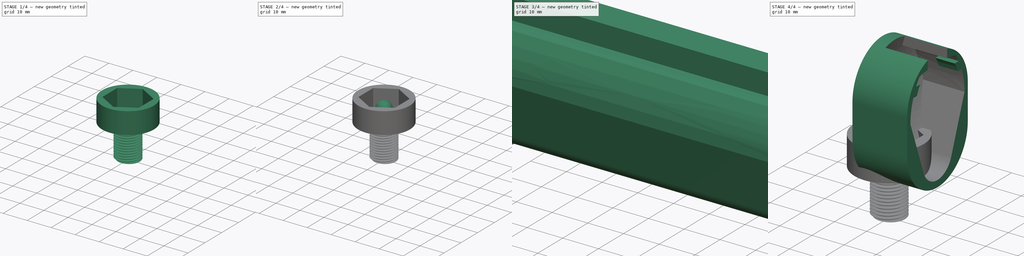
[diagram: build sequence overview — one tinted view per stage of 4, left to right]
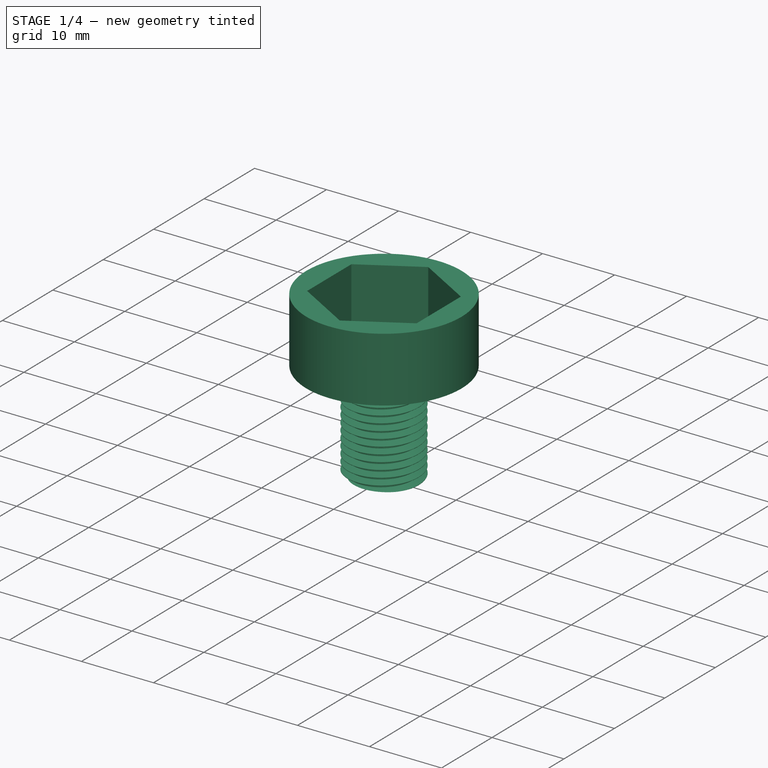
[diagram: stage 1 of 4 — iso view after this stage's code; geometry added in this stage tinted green]
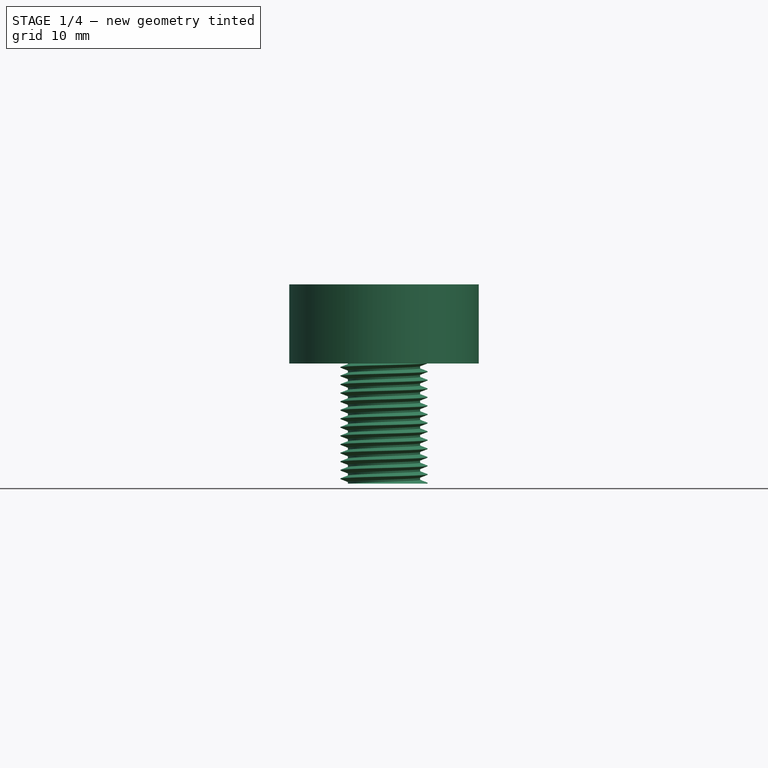
[diagram: stage 1 of 4 — front view after this stage's code; geometry added in this stage tinted green]
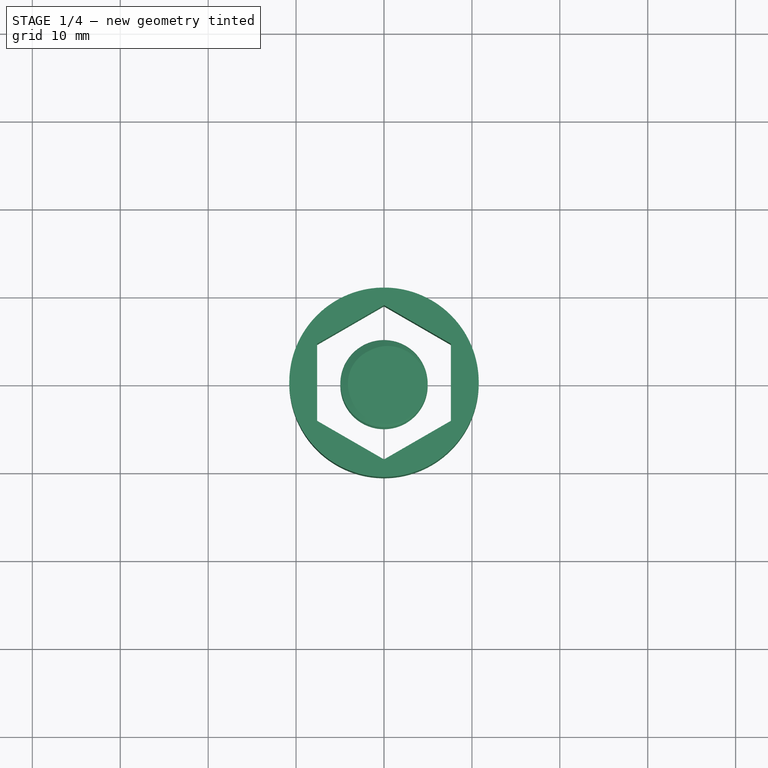
[diagram: stage 1 of 4 — top view after this stage's code; geometry added in this stage tinted green]
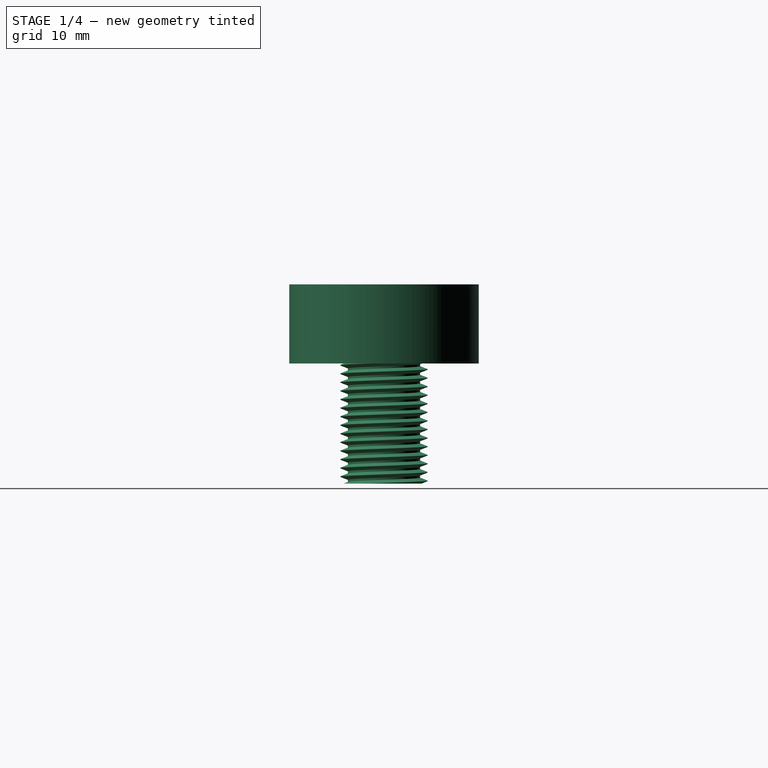
[diagram: stage 1 of 4 — right view after this stage's code; geometry added in this stage tinted green]
FCSTD DOCUMENT  (FreeCAD 0.17R13541 (Git))
Label: test120_dw_suppressor
License: All rights reserved
LicenseURL: http://en.wikipedia.org/wiki/All_rights_reserved
objects: Sketcher::SketchObject×9, PartDesign::Body×3, PartDesign::Pad×2, PartDesign::Pocket×2, Part::FeaturePython×2, Spreadsheet::Sheet×1, PartDesign::SubtractivePipe×1, Part::Extrusion×1, PartDesign::Plane×1, Part::Cut×1, Part::Sphere×1, PartDesign::FeatureBase×1
note: 29 computed .brp shape members not serialized (recipe doc carries the construction recipe); baked Part::Feature solids carry a one-line shape summary decoded from their .brp

FEATURE [Part::FeaturePython] ScrewTap  label="M10x20.0-ScrewTap"  # Fasteners workbench fastener (typed FeaturePython)
  diameter = 10
  invert = false
  length = 20
  matchOuter = false
  offset = 0
  thread = true
FEATURE [Part::FeaturePython] Clone001  label="M10x20.0-ScrewTap001"  # Draft clone (typed FeaturePython)
  AttacherType = Attacher::AttachEngine3D
  Fuse = false
  Objects = -> [ScrewTap]
  Scale = (0.98,0.98,0.65)
FEATURE [PartDesign::Body] Body001
  BaseFeature = -> Clone001
  Group = -> [BaseFeature,Sketch006,Sketch007,Pocket001]
  Origin = -> Origin001
  Tip = -> Pocket001
FEATURE [Sketcher::SketchObject] Sketch008
  MapMode = 5
  Support = -> [XY_Plane002]
  expr: Constraints[19] = 14.9 + 0.29999999999999999
  sketch-geometry (9):
    g0: LineSegment StartX=0 StartY=-8.77572 StartZ=0 EndX=7.6 EndY=-4.38786 EndZ=0
    g1: LineSegment StartX=7.6 StartY=-4.38786 StartZ=0 EndX=7.6 EndY=4.38786 EndZ=0
    g2: LineSegment StartX=7.6 StartY=4.38786 StartZ=0 EndX=0 EndY=8.77572 EndZ=0
    g3: LineSegment StartX=0 StartY=8.77572 StartZ=0 EndX=-7.6 EndY=4.38786 EndZ=0
    g4: LineSegment StartX=-7.6 StartY=4.38786 StartZ=0 EndX=-7.6 EndY=-4.38786 EndZ=0
    g5: LineSegment StartX=-7.6 StartY=-4.38786 StartZ=0 EndX=0 EndY=-8.77572 EndZ=0
    g6: Circle [constr] CenterX=0 CenterY=0 CenterZ=0 NormalX=0 NormalY=0 NormalZ=1 AngleXU=0 Radius=8.77572
    g7: Circle CenterX=0 CenterY=0 CenterZ=0 NormalX=0 NormalY=0 NormalZ=1 AngleXU=0 Radius=10.7757
    g8: GeomPoint X=0 Y=-10.7757 Z=0
  constraints (20):
    c: Coincident(g0,g1)
    c: Coincident(g1,g2)
    c: Coincident(g2,g3)
    c: Coincident(g3,g4)
    c: Coincident(g4,g5)
    c: Coincident(g5,g0)
    c: Equal(g0, g1-g5) x5
    c: PointOnObject(g0,g6)
    c: PointOnObject(g1,g6)
    c: PointOnObject(g2,g6)
    c: PointOnObject(g3,g6)
    c: PointOnObject(g4,g6)
    c: PointOnObject(g5,g6)
    c: Coincident(g6,g-1)
    c: PointOnObject(g5,g-2)
    c: Distance(g0,g2) = 15.2
    c: Coincident(g7,g-1)
    c: PointOnObject(g8,g7)
    c: PointOnObject(g8,g-2)
    c: Distance(g8,g0) = 2
FEATURE [PartDesign::Pad] Pad001
  Length = 9
  Length2 = 100
  Profile = -> Sketch008
  Type = 0
FEATURE [PartDesign::Body] Body002
  Group = -> [Sketch008,Pad001]
  Origin = -> Origin002
  Tip = -> Pad001
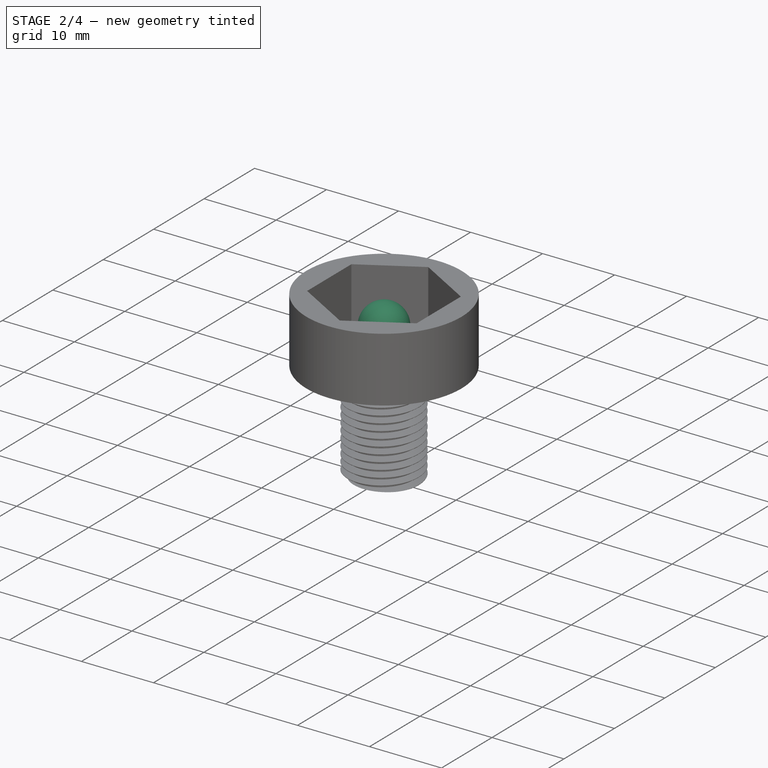
[diagram: stage 2 of 4 — iso view after this stage's code; geometry added in this stage tinted green]
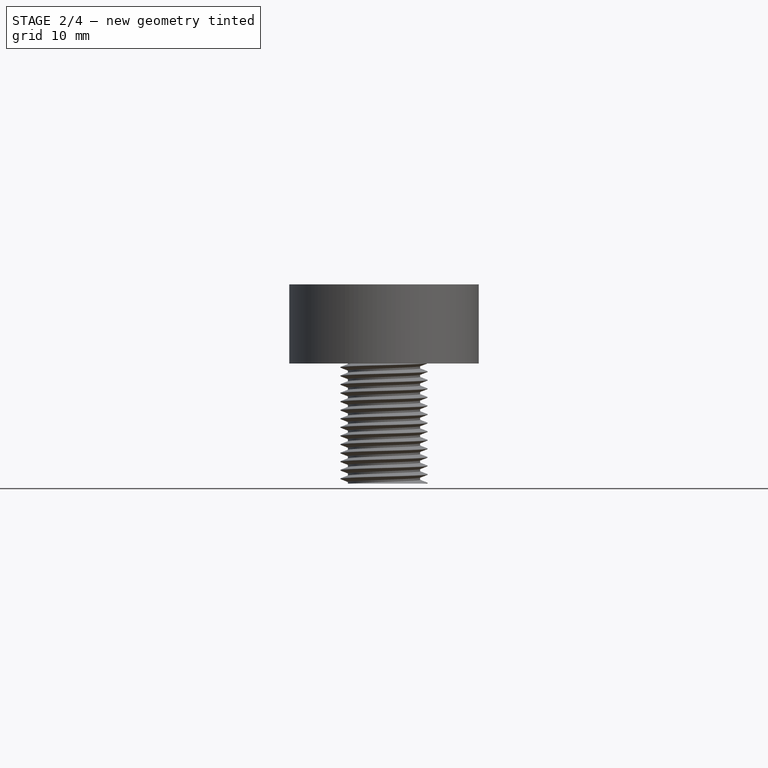
[diagram: stage 2 of 4 — front view after this stage's code; geometry added in this stage tinted green]
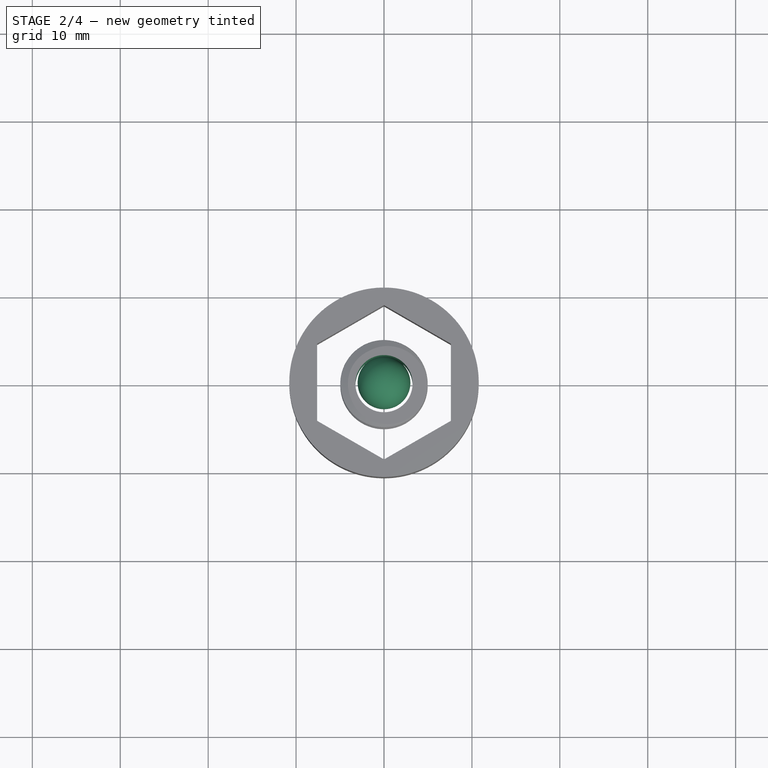
[diagram: stage 2 of 4 — top view after this stage's code; geometry added in this stage tinted green]
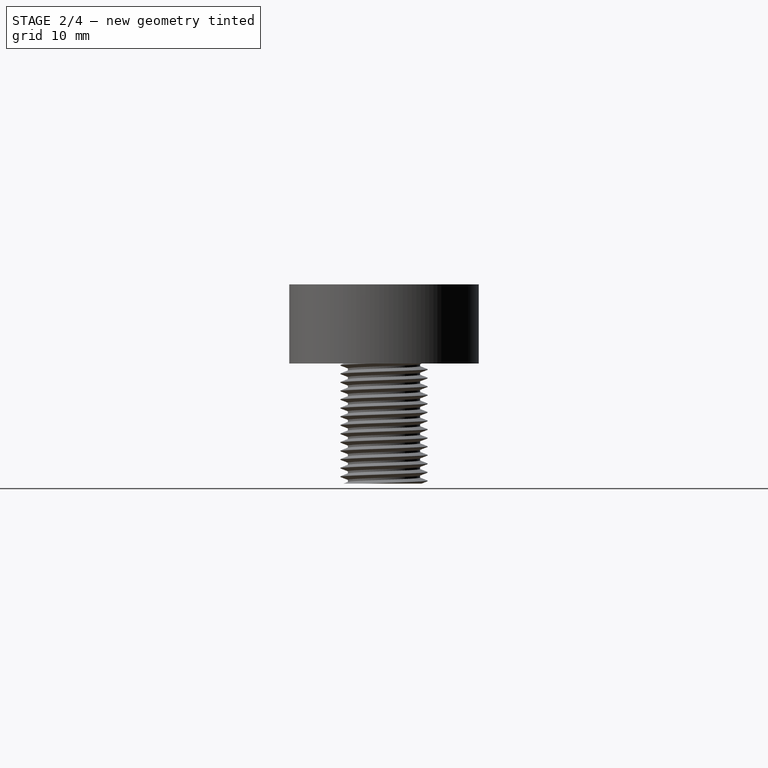
[diagram: stage 2 of 4 — right view after this stage's code; geometry added in this stage tinted green]
FEATURE [Sketcher::SketchObject] Sketch006
  MapMode = 5
  Support = -> [XY_Plane001]
  sketch-geometry (1):
    g0: Circle CenterX=0 CenterY=0 CenterZ=0 NormalX=0 NormalY=0 NormalZ=1 AngleXU=0 Radius=4.5
  constraints (2):
    c: Coincident(g0,g-1)
    c: Radius(g0) = 4.5
FEATURE [Sketcher::SketchObject] Sketch007
  MapMode = 5
  Support = -> [XY_Plane001]
  sketch-geometry (1):
    g0: Circle CenterX=0 CenterY=0 CenterZ=0 NormalX=0 NormalY=0 NormalZ=1 AngleXU=0 Radius=3.25
  constraints (2):
    c: Coincident(g0,g-1)
    c: Radius(g0) = 3.25
FEATURE [Part::Sphere] Sphere
  Angle1 = -90
  Angle2 = 90
  Angle3 = 360
  AttacherType = Attacher::AttachEngine3D
  Placement = pos=(0,0,5) rot=(0,0,1;0rad)
  Radius = 3
FEATURE [PartDesign::FeatureBase] BaseFeature
  BaseFeature = -> Clone001
FEATURE [PartDesign::Pocket] Pocket001
  BaseFeature = -> BaseFeature
  Length = 5
  Length2 = 100
  Profile = -> Sketch007
  Type = 1
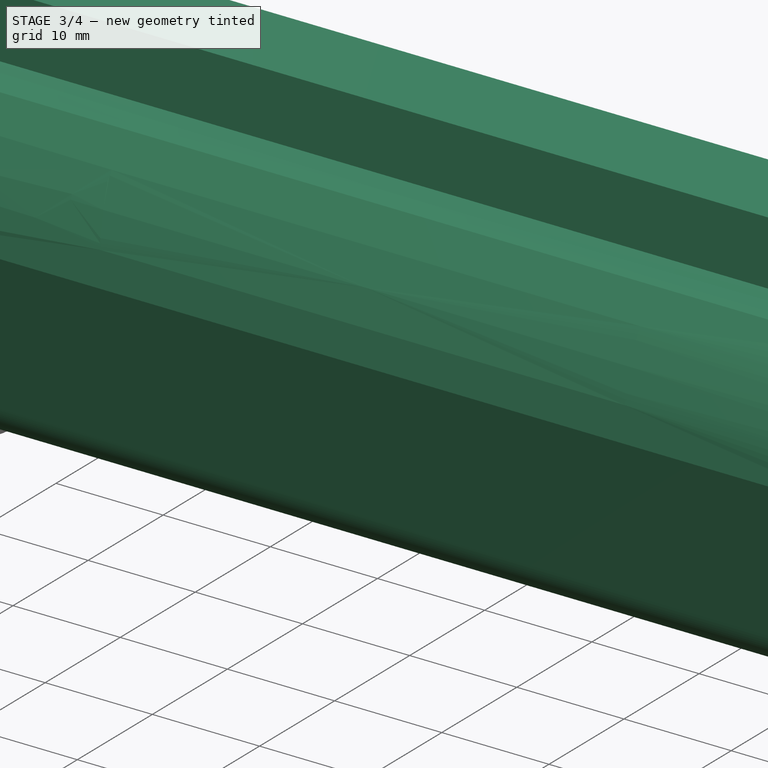
[diagram: stage 3 of 4 — iso view after this stage's code; geometry added in this stage tinted green]
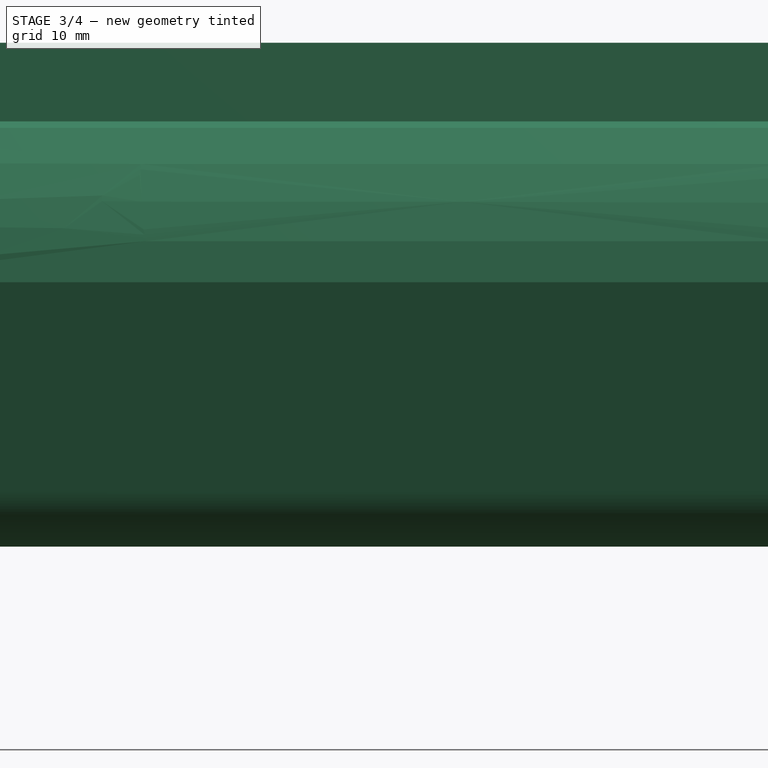
[diagram: stage 3 of 4 — front view after this stage's code; geometry added in this stage tinted green]
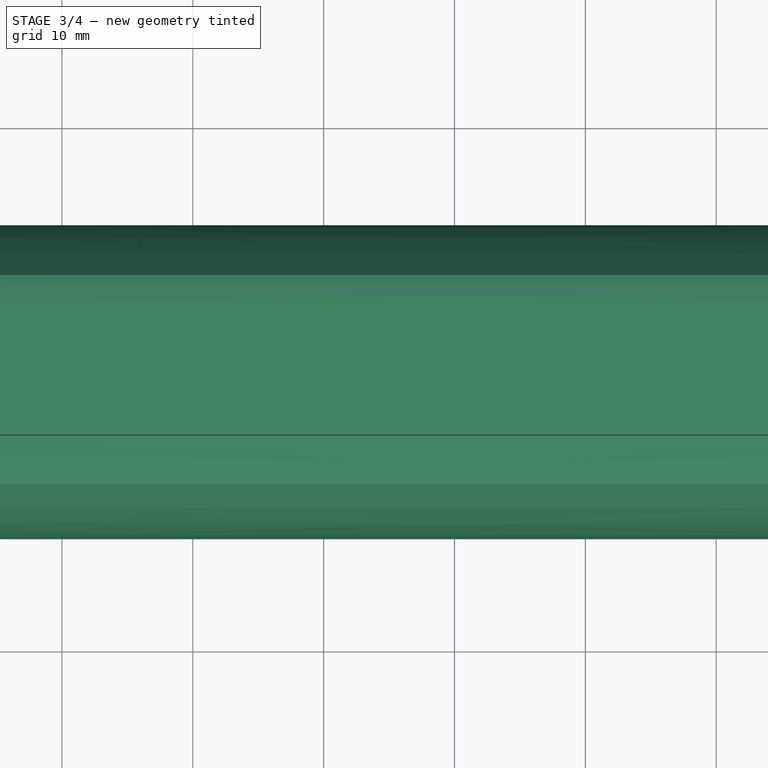
[diagram: stage 3 of 4 — top view after this stage's code; geometry added in this stage tinted green]
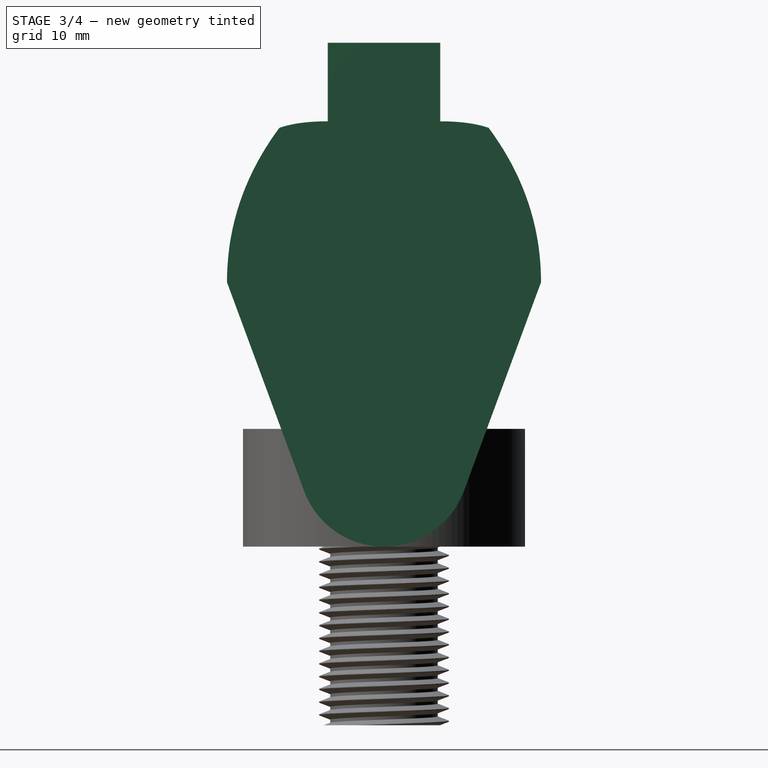
[diagram: stage 3 of 4 — right view after this stage's code; geometry added in this stage tinted green]
FEATURE [Spreadsheet::Sheet] Spreadsheet
  cells = A1=#Padding; B1(Padding)=0.5; A2=#GrillOffsetEnd; B2(GrillOffsetEnd)=9
FEATURE [Sketcher::SketchObject] Sketch  label="EndProfileBase"
  MapMode = 5
  Placement = pos=(0,0,0) rot=(1,0,0;1.5708rad)
  Support = -> [XZ_Plane]
  sketch-geometry (19):
    g0: LineSegment [constr] StartX=0 StartY=0 StartZ=0 EndX=9.5 EndY=0 EndZ=0
    g1: LineSegment [constr] StartX=9.5 StartY=0 StartZ=0 EndX=9.5 EndY=32 EndZ=0
    g2: LineSegment [constr] StartX=9.5 StartY=32 StartZ=0 EndX=0 EndY=32 EndZ=0
    g3: LineSegment [constr] StartX=0 StartY=32 StartZ=0 EndX=0 EndY=0 EndZ=0
    g4: GeomPoint X=0 Y=27 Z=0
    g5: Circle [constr] CenterX=9.5 CenterY=0 CenterZ=0 NormalX=0 NormalY=0 NormalZ=1 AngleXU=0 Radius=2
    g6: Circle [constr] CenterX=0 CenterY=12.777 CenterZ=0 NormalX=0 NormalY=0 NormalZ=1 AngleXU=0 Radius=2
    g7: Circle [constr] CenterX=0 CenterY=27 CenterZ=0 NormalX=0 NormalY=0 NormalZ=1 AngleXU=0 Radius=2
    g8: BSplineCurve PolesCount=3 KnotsCount=2 Degree=2 IsPeriodic=0
    g9: GeomPoint [constr] X=9.5 Y=0 Z=0
    g10: GeomPoint [constr] X=0 Y=27 Z=0
    g11: Circle [constr] CenterX=0 CenterY=27 CenterZ=0 NormalX=0 NormalY=0 NormalZ=1 AngleXU=0 Radius=0.6
    g12: Circle [constr] CenterX=0 CenterY=28.8607 CenterZ=0 NormalX=0 NormalY=0 NormalZ=1 AngleXU=0 Radius=0.6
    g13: Circle [constr] CenterX=0.7 CenterY=32 CenterZ=0 NormalX=0 NormalY=0 NormalZ=1 AngleXU=0 Radius=0.6
    g14: BSplineCurve PolesCount=3 KnotsCount=2 Degree=2 IsPeriodic=0
    g15: GeomPoint [constr] X=0 Y=27 Z=0
    g16: GeomPoint [constr] X=0.7 Y=32 Z=0
    g17: LineSegment StartX=9.5 StartY=0 StartZ=0 EndX=0 EndY=12.777 EndZ=0
    g18: LineSegment StartX=0 StartY=28.8607 StartZ=0 EndX=0.7 EndY=32 EndZ=0
  constraints (40):
    c: Coincident(g0,g1)
    c: Coincident(g1,g2)
    c: Coincident(g2,g3)
    c: Coincident(g3,g0)
    c: Horizontal(g0)
    c: Horizontal(g2)
    c: Vertical(g1)
    c: Vertical(g3)
    c: Coincident(g0,g-1)
    c: Distance(g3) = 32
    c: Distance(g0) = 9.5
    c: PointOnObject(g4,g3)
    c: Distance(g4,g2) = 5
    c: Coincident(g5,g0)
    c: Radius(g5) = 2
    c: Equal(g5,g6)
    c: Equal(g5,g7)
    c: Coincident(g7,g4)
    c: InternalAlignment(g5,g8)
    c: InternalAlignment(g6,g8)
    c: InternalAlignment(g7,g8)
    c: InternalAlignment(g9,g8)
    c: InternalAlignment(g10,g8)
    c: PointOnObject(g6,g3)
    c: Coincident(g11,g4)
    c: Radius(g11) = 0.6
    c: Equal(g11,g12)
    c: PointOnObject(g12,g3)
    c: Equal(g11,g13)
    c: PointOnObject(g13,g2)
    c: InternalAlignment(g11,g14)
    c: InternalAlignment(g12,g14)
    c: InternalAlignment(g13,g14)
    c: InternalAlignment(g15,g14)
    c: InternalAlignment(g16,g14)
    c: Distance(g13,g2) = 0.7
    c: Coincident(g0,g17)
    c: Coincident(g17,g6)
    c: Coincident(g18,g12)
    c: Coincident(g18,g13)
FEATURE [Sketcher::SketchObject] Sketch001  label="EndProfile"
  ExternalGeometry = -> [Sketch]
  MapMode = 5
  Placement = pos=(0,0,0) rot=(1,0,0;1.5708rad)
  Support = -> [XZ_Plane]
  sketch-geometry (17):
    g0: LineSegment StartX=-2.65756 StartY=-4.7693 StartZ=0 EndX=-2.65756 EndY=41.459 EndZ=0
    g1: Circle [constr] CenterX=9.5003 CenterY=-0.000547 CenterZ=0 NormalX=0 NormalY=0 NormalZ=1 AngleXU=0 Radius=2
    g2: Circle [constr] CenterX=0 CenterY=12.777 CenterZ=0 NormalX=0 NormalY=0 NormalZ=1 AngleXU=0 Radius=2
    g3: Circle [constr] CenterX=0 CenterY=27 CenterZ=0 NormalX=0 NormalY=0 NormalZ=1 AngleXU=0 Radius=2
    g4: BSplineCurve PolesCount=3 KnotsCount=2 Degree=2 IsPeriodic=0
    g5: GeomPoint [constr] X=9.5003 Y=-0.000547 Z=0
    g6: GeomPoint [constr] X=0 Y=27 Z=0
    g7: Circle [constr] CenterX=0 CenterY=27 CenterZ=0 NormalX=0 NormalY=0 NormalZ=1 AngleXU=0 Radius=0.6
    g8: Circle [constr] CenterX=0 CenterY=28.8607 CenterZ=0 NormalX=0 NormalY=0 NormalZ=1 AngleXU=0 Radius=0.6
    g9: Circle [constr] CenterX=0.7 CenterY=32 CenterZ=0 NormalX=0 NormalY=0 NormalZ=1 AngleXU=0 Radius=0.6
    g10: BSplineCurve PolesCount=3 KnotsCount=2 Degree=2 IsPeriodic=0
    g11: GeomPoint [constr] X=0 Y=27 Z=0
    g12: GeomPoint [constr] X=0.7 Y=32 Z=0
    g13: LineSegment StartX=0.7 StartY=32 StartZ=0 EndX=3.46291 EndY=41.459 EndZ=0
    g14: LineSegment StartX=3.46291 StartY=41.459 StartZ=0 EndX=-2.65756 EndY=41.459 EndZ=0
    g15: LineSegment StartX=9.5003 StartY=-0.000547 StartZ=0 EndX=13.8109 EndY=-4.7693 EndZ=0
    g16: LineSegment StartX=13.8109 StartY=-4.7693 StartZ=0 EndX=-2.65756 EndY=-4.7693 EndZ=0
  constraints (29):
    c: Vertical(g0)
    c: Radius(g1) = 2
    c: Equal(g1,g2)
    c: Coincident(g2,g-4)
    c: Equal(g1,g3)
    c: Coincident(g3,g-3)
    c: InternalAlignment(g1,g4)
    c: InternalAlignment(g2,g4)
    c: InternalAlignment(g3,g4)
    c: InternalAlignment(g5,g4)
    c: InternalAlignment(g6,g4)
    c: Coincident(g7,g3)
    c: Radius(g7) = 0.6
    c: Equal(g7,g8)
    c: Coincident(g8,g-5)
    c: Equal(g7,g9)
    c: InternalAlignment(g7,g10)
    c: InternalAlignment(g8,g10)
    c: InternalAlignment(g9,g10)
    c: InternalAlignment(g11,g10)
    c: InternalAlignment(g12,g10)
    c: Coincident(g13,g9)
    c: Coincident(g13,g14)
    c: Horizontal(g14)
    c: Coincident(g0,g14)
    c: Coincident(g15,g1)
    c: Coincident(g16,g15)
    c: Horizontal(g16)
    c: Coincident(g0,g16)
FEATURE [Sketcher::SketchObject] Sketch002
  ExternalGeometry = -> [Sketch]
  MapMode = 5
  Placement = pos=(0,0,0) rot=(0.57735,0.57735,0.57735;2.0944rad)
  Support = -> [YZ_Plane]
  expr: Constraints[33] = 3.7999999999999998 + Spreadsheet.Padding
  expr: Constraints[73] = Spreadsheet.Padding
  expr: Constraints[6] = 11.5 + Spreadsheet.Padding
  sketch-geometry (37):
    g0: LineSegment [constr] StartX=0 StartY=32.5 StartZ=0 EndX=12 EndY=32.5 EndZ=0
    g1: LineSegment [constr] StartX=12 StartY=32.5 StartZ=0 EndX=12 EndY=0 EndZ=0
    g2: LineSegment [constr] StartX=0 StartY=0 StartZ=0 EndX=0 EndY=32.5 EndZ=0
    g3: LineSegment StartX=12 StartY=20.2 StartZ=0 EndX=6.10723 EndY=4.25399 EndZ=0
    g4: GeomPoint X=8 Y=32 Z=0
    g5: Circle [constr] CenterX=12 CenterY=20.2 CenterZ=0 NormalX=0 NormalY=0 NormalZ=1 AngleXU=0 Radius=0.7
    g6: Circle [constr] CenterX=12 CenterY=26.604 CenterZ=0 NormalX=0 NormalY=0 NormalZ=1 AngleXU=0 Radius=0.7
    g7: Circle [constr] CenterX=8 CenterY=32 CenterZ=0 NormalX=0 NormalY=0 NormalZ=1 AngleXU=0 Radius=0.7
    g8: BSplineCurve PolesCount=3 KnotsCount=2 Degree=2 IsPeriodic=0
    g9: GeomPoint [constr] X=12 Y=20.2 Z=0
    g10: GeomPoint [constr] X=8 Y=32 Z=0
    g11: Circle [constr] CenterX=8 CenterY=32 CenterZ=0 NormalX=0 NormalY=0 NormalZ=1 AngleXU=0 Radius=0.4
    g12: Circle [constr] CenterX=6.57072 CenterY=32.5 CenterZ=0 NormalX=0 NormalY=0 NormalZ=1 AngleXU=0 Radius=0.4
    g13: Circle [constr] CenterX=4.3 CenterY=32.5 CenterZ=0 NormalX=0 NormalY=0 NormalZ=1 AngleXU=0 Radius=0.4
    g14: BSplineCurve PolesCount=3 KnotsCount=2 Degree=2 IsPeriodic=0
    g15: GeomPoint [constr] X=8 Y=32 Z=0
    g16: GeomPoint [constr] X=4.3 Y=32.5 Z=0
    g17: LineSegment StartX=4.3 StartY=32.5 StartZ=0 EndX=4.3 EndY=38.5 EndZ=0
    g18: LineSegment StartX=4.3 StartY=38.5 StartZ=0 EndX=0 EndY=38.5 EndZ=0
    g19: LineSegment [constr] StartX=0 StartY=0 StartZ=0 EndX=12 EndY=0 EndZ=0
    g20: LineSegment StartX=-6.10723 StartY=4.25399 StartZ=0 EndX=-12 EndY=20.2 EndZ=0
    g21: Circle [constr] CenterX=-12 CenterY=20.2 CenterZ=0 NormalX=0 NormalY=0 NormalZ=1 AngleXU=0 Radius=1
    g22: Circle [constr] CenterX=-12 CenterY=26.604 CenterZ=0 NormalX=0 NormalY=0 NormalZ=1 AngleXU=0 Radius=1
    g23: Circle [constr] CenterX=-8 CenterY=32 CenterZ=0 NormalX=0 NormalY=0 NormalZ=1 AngleXU=0 Radius=1
    g24: BSplineCurve PolesCount=3 KnotsCount=2 Degree=2 IsPeriodic=0
    g25: GeomPoint [constr] X=-12 Y=20.2 Z=0
    g26: GeomPoint [constr] X=-8 Y=32 Z=0
    g27: Circle [constr] CenterX=-8 CenterY=32 CenterZ=0 NormalX=0 NormalY=0 NormalZ=1 AngleXU=0 Radius=0.4
    g28: Circle [constr] CenterX=-6.57072 CenterY=32.5 CenterZ=0 NormalX=0 NormalY=0 NormalZ=1 AngleXU=0 Radius=0.4
    g29: Circle [constr] CenterX=-4.3 CenterY=32.5 CenterZ=0 NormalX=0 NormalY=0 NormalZ=1 AngleXU=0 Radius=0.4
    g30: BSplineCurve PolesCount=3 KnotsCount=2 Degree=2 IsPeriodic=0
    g31: GeomPoint [constr] X=-8 Y=32 Z=0
    g32: GeomPoint [constr] X=-4.3 Y=32.5 Z=0
    g33: LineSegment StartX=-4.3 StartY=32.5 StartZ=0 EndX=-4.3 EndY=38.5 EndZ=0
    g34: LineSegment StartX=-4.3 StartY=38.5 StartZ=0 EndX=0 EndY=38.5 EndZ=0
    g35: ArcOfCircle CenterX=0 CenterY=6.51091 CenterZ=0 NormalX=0 NormalY=0 NormalZ=1 AngleXU=0 Radius=6.51091 StartAngle=3.49558 EndAngle=5.9292
    g36: GeomPoint X=0 Y=0 Z=0
  constraints (82):
    c: Coincident(g0,g1)
    c: Coincident(g2,g0)
    c: Horizontal(g0)
    c: Vertical(g1)
    c: Vertical(g2)
    c: PointOnObject(g1,g-1)
    c: Distance(g0) = 12
    c: PointOnObject(g3,g1)
    c: Distance(g3,g0) = 12.3
    c: Coincident(g5,g3)
    c: Radius(g5) = 0.7
    c: Equal(g5,g6)
    c: PointOnObject(g6,g1)
    c: Equal(g5,g7)
    c: Coincident(g7,g4)
    c: InternalAlignment(g5,g8)
    c: InternalAlignment(g6,g8)
    c: InternalAlignment(g7,g8)
    c: InternalAlignment(g9,g8)
    c: InternalAlignment(g10,g8)
    c: DistanceX(g0,g4) = 8
    c: Distance(g4,g0) = 0.5
    c: Coincident(g11,g4)
    c: Radius(g11) = 0.4
    c: Equal(g11,g12)
    c: PointOnObject(g12,g0)
    c: Equal(g11,g13)
    c: PointOnObject(g13,g0)
    c: InternalAlignment(g11,g14)
    c: InternalAlignment(g12,g14)
    c: InternalAlignment(g13,g14)
    c: InternalAlignment(g15,g14)
    c: InternalAlignment(g16,g14)
    c: Distance(g13,g0) = 4.3
    c: Coincident(g17,g13)
    c: Vertical(g17)
    c: Coincident(g17,g18)
    c: PointOnObject(g18,g-2)
    c: Horizontal(g18)
    c: Distance(g17) = 6
    c: Distance(g3) = 17
    c: Coincident(g19,g2)
    c: Coincident(g19,g1)
    c: Horizontal(g19)
    c: Coincident(g21,g20)
    c: Radius(g21) = 1
    c: Equal(g21,g22)
    c: Equal(g21,g23)
    c: InternalAlignment(g21,g24)
    c: InternalAlignment(g22,g24)
    c: InternalAlignment(g23,g24)
    c: InternalAlignment(g25,g24)
    c: InternalAlignment(g26,g24)
    c: Coincident(g27,g23)
    c: Radius(g27) = 0.4
    c: Equal(g27,g28)
    c: Equal(g27,g29)
    c: InternalAlignment(g27,g30)
    c: InternalAlignment(g28,g30)
    c: InternalAlignment(g29,g30)
    c: InternalAlignment(g31,g30)
    c: InternalAlignment(g32,g30)
    c: Coincident(g33,g29)
    c: Vertical(g33)
    c: Coincident(g33,g34)
    c: Coincident(g34,g18)
    c: Horizontal(g34)
    c: Symmetric(g3,g20,g2)
    c: Symmetric(g6,g22,g2)
    c: Symmetric(g4,g23,g2)
    c: Symmetric(g12,g28,g2)
    c: Symmetric(g13,g29,g2)
    c: PointOnObject(g0,g-2)
    c: Distance(g-3,g0) = 0.5
    c: PointOnObject(g35,g2)
    c: Coincident(g35,g3)
    c: Coincident(g35,g20)
    c: PointOnObject(g36,g35)
    c: PointOnObject(g36,g-2)
    c: Equal(g3,g20)
    c: Tangent(g35,g3)
    c: DistanceY(g36,g-1) = 0
FEATURE [PartDesign::Pad] Pad
  Length = 100
  Length2 = 100
  Placement = pos=(0,0,0) rot=(0.57735,0.57735,0.57735;2.0944rad)
  Profile = -> Sketch002
  Type = 0
FEATURE [Sketcher::SketchObject] Sketch003  label="SweepPath"
  MapMode = 5
  Support = -> [XY_Plane]
  sketch-geometry (1):
    g0: ArcOfCircle CenterX=45.6904 CenterY=0 CenterZ=0 NormalX=0 NormalY=0 NormalZ=1 AngleXU=0 Radius=45.6904 StartAngle=2.84462 EndAngle=3.43856
  constraints (4):
    c: PointOnObject(g-1,g0)
    c: Symmetric(g0,g0,g-1)
    c: DistanceX(g0) = 2
    c: DistanceY(g0) = -13.3702
FEATURE [PartDesign::SubtractivePipe] SubtractivePipe  label="Pipe"
  AuxilleryCurvelinear = true
  AuxillerySpineTangent = false
  BaseFeature = -> Pad
  Binormal = (0,0,0)
  Mode = 0
  Placement = pos=(0,0,0) rot=(0.57735,0.57735,0.57735;2.0944rad)
  Profile = -> Sketch001
  Spine = -> Sketch003 [Edge1]
  SpineTangent = false
  Transformation = 0
  Transition = 0
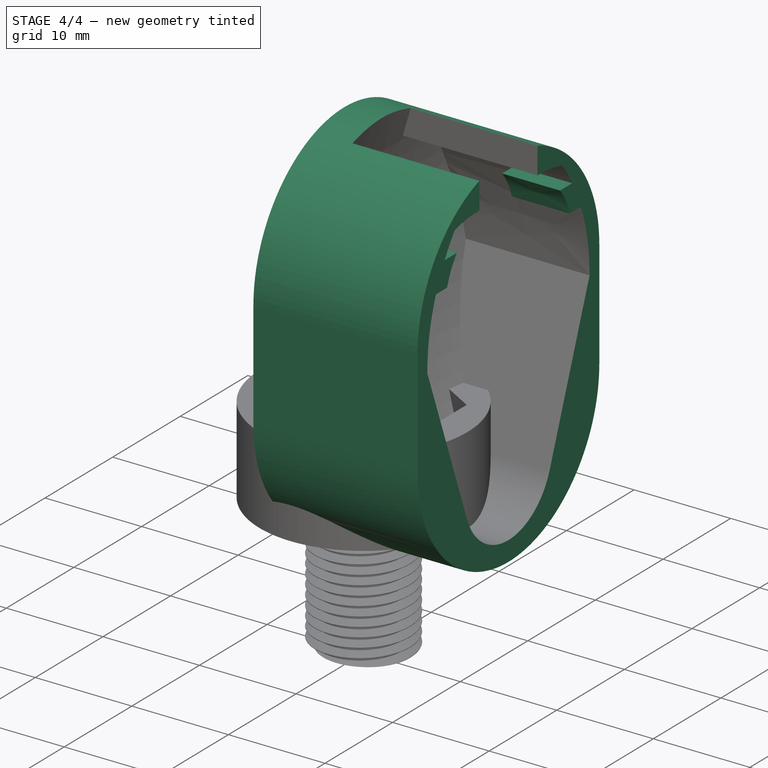
[diagram: stage 4 of 4 — iso view after this stage's code; geometry added in this stage tinted green]
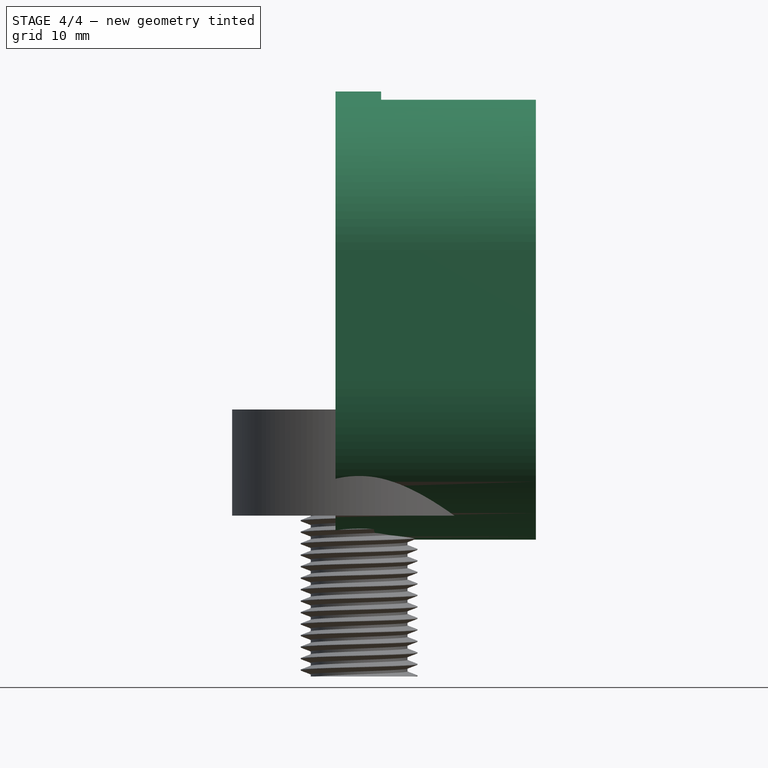
[diagram: stage 4 of 4 — front view after this stage's code; geometry added in this stage tinted green]
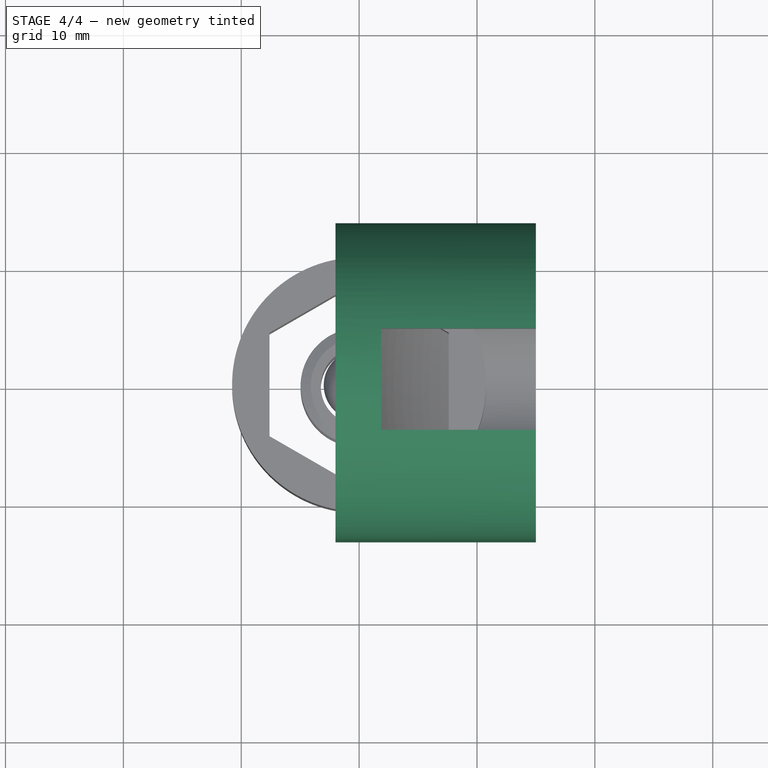
[diagram: stage 4 of 4 — top view after this stage's code; geometry added in this stage tinted green]
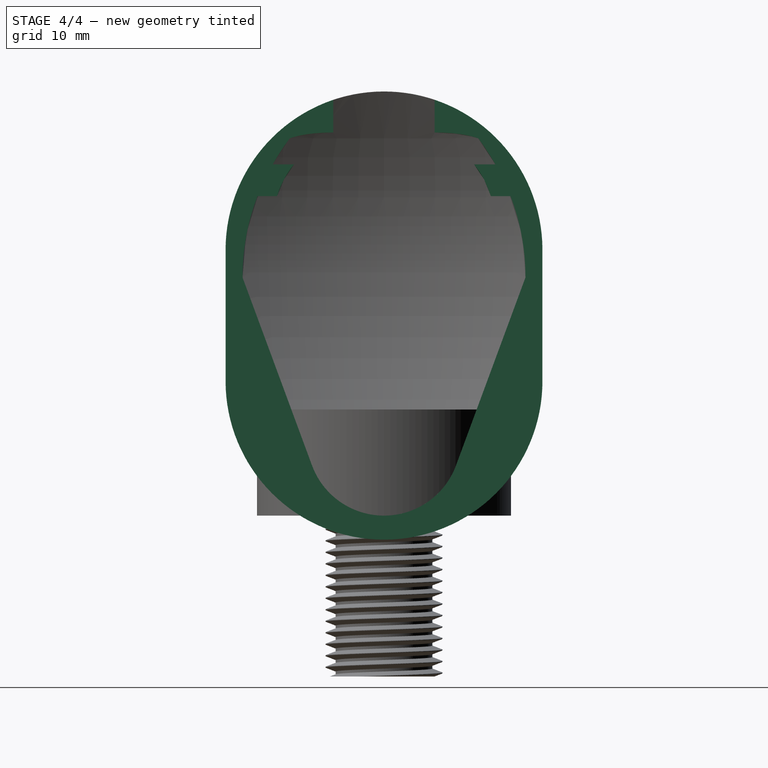
[diagram: stage 4 of 4 — right view after this stage's code; geometry added in this stage tinted green]
FEATURE [Sketcher::SketchObject] Sketch004
  MapMode = 5
  Placement = pos=(0,0,0) rot=(0.57735,0.57735,0.57735;2.0944rad)
  Support = -> [YZ_Plane]
  sketch-geometry (6):
    g0: LineSegment StartX=13.4403 StartY=22.5395 StartZ=0 EndX=13.4403 EndY=11.3991 EndZ=0
    g1: ArcOfCircle CenterX=0 CenterY=11.3991 CenterZ=0 NormalX=0 NormalY=0 NormalZ=1 AngleXU=0 Radius=13.4403 StartAngle=4.71239 EndAngle=6.28319
    g2: ArcOfCircle CenterX=0 CenterY=22.5395 CenterZ=0 NormalX=0 NormalY=0 NormalZ=1 AngleXU=0 Radius=13.4403 StartAngle=0 EndAngle=1.5708
    g3: ArcOfCircle CenterX=0 CenterY=22.5395 CenterZ=0 NormalX=0 NormalY=0 NormalZ=1 AngleXU=0 Radius=13.4403 StartAngle=1.5708 EndAngle=3.14159
    g4: LineSegment StartX=-13.4403 StartY=22.5395 StartZ=0 EndX=-13.4403 EndY=11.3991 EndZ=0
    g5: ArcOfCircle CenterX=0 CenterY=11.3991 CenterZ=0 NormalX=0 NormalY=0 NormalZ=1 AngleXU=0 Radius=13.4403 StartAngle=3.14159 EndAngle=4.71239
  constraints (11):
    c: Vertical(g0)
    c: Tangent(g0,g1) = 1.5708
    c: Tangent(g0,g2) = 1.5708
    c: Equal(g2,g1)
    c: PointOnObject(g1,g-2)
    c: PointOnObject(g2,g-2)
    c: Perpendicular(g1,g-2)
    c: Vertical(g4)
    c: Tangent(g4,g5) = -1.5708
    c: Tangent(g4,g3) = -1.5708
    c: Equal(g3,g5)
FEATURE [Part::Extrusion] Extrude
  Base = -> Sketch004
  Dir = (1,0,0)
  DirMode = 2
  FaceMakerClass = Part::FaceMakerBullseye
  LengthFwd = 15
  LengthRev = 2
  Solid = true
  Symmetric = false
FEATURE [PartDesign::Plane] DatumPlane
  AttachmentOffset = pos=(0,0,9) rot=(0,0,1;0rad)
  MapMode = 5
  Placement = pos=(9,-1e-12,1e-12) rot=(0.57735,0.57735,0.57735;2.0944rad)
  Support = -> [YZ_Plane]
  expr: AttachmentOffset.Base.z = Spreadsheet.GrillOffsetEnd
FEATURE [Sketcher::SketchObject] Sketch005
  ExternalGeometry = -> [Sketch002]
  MapMode = 5
  Placement = pos=(9,-1e-12,1e-12) rot=(-0.57735,0.57735,0.57735;4.18879rad)
  Support = -> [DatumPlane]
  sketch-geometry (18):
    g0: Circle [constr] CenterX=-9.07211 CenterY=27.1 CenterZ=0 NormalX=0 NormalY=0 NormalZ=1 AngleXU=0 Radius=0.5
    g1: Circle [constr] CenterX=-8.62972 CenterY=28.5789 CenterZ=0 NormalX=0 NormalY=0 NormalZ=1 AngleXU=0 Radius=0.5
    g2: Circle [constr] CenterX=-7.63533 CenterY=29.8 CenterZ=0 NormalX=0 NormalY=0 NormalZ=1 AngleXU=0 Radius=0.5
    g3: BSplineCurve PolesCount=3 KnotsCount=2 Degree=2 IsPeriodic=0
    g4: GeomPoint [constr] X=-9.07211 Y=27.1 Z=0
    g5: GeomPoint [constr] X=-7.63533 Y=29.8 Z=0
    g6: LineSegment StartX=-7.63533 StartY=29.8 StartZ=0 EndX=-14.2502 EndY=29.8 EndZ=0
    g7: LineSegment StartX=-14.2502 StartY=29.8 StartZ=0 EndX=-14.2502 EndY=27.1 EndZ=0
    g8: LineSegment StartX=-14.2502 StartY=27.1 StartZ=0 EndX=-9.07211 EndY=27.1 EndZ=0
    g9: Circle [constr] CenterX=9.07211 CenterY=27.1 CenterZ=0 NormalX=0 NormalY=0 NormalZ=1 AngleXU=0 Radius=0.4
    g10: Circle [constr] CenterX=8.62972 CenterY=28.5789 CenterZ=0 NormalX=0 NormalY=0 NormalZ=1 AngleXU=0 Radius=0.4
    g11: Circle [constr] CenterX=7.63533 CenterY=29.8 CenterZ=0 NormalX=0 NormalY=0 NormalZ=1 AngleXU=0 Radius=0.4
    g12: BSplineCurve PolesCount=3 KnotsCount=2 Degree=2 IsPeriodic=0
    g13: GeomPoint [constr] X=9.07211 Y=27.1 Z=0
    g14: GeomPoint [constr] X=7.63533 Y=29.8 Z=0
    g15: LineSegment StartX=7.63533 StartY=29.8 StartZ=0 EndX=13.6645 EndY=29.8 EndZ=0
    g16: LineSegment StartX=13.6645 StartY=29.8 StartZ=0 EndX=13.6645 EndY=27.1 EndZ=0
    g17: LineSegment StartX=13.6645 StartY=27.1 StartZ=0 EndX=9.07211 EndY=27.1 EndZ=0
  constraints (35):
    c: Radius(g0) = 0.5
    c: Equal(g0,g1)
    c: Equal(g0,g2)
    c: InternalAlignment(g0,g3)
    c: InternalAlignment(g1,g3)
    c: InternalAlignment(g2,g3)
    c: InternalAlignment(g4,g3)
    c: InternalAlignment(g5,g3)
    c: Coincident(g6,g2)
    c: Horizontal(g6)
    c: Coincident(g6,g7)
    c: Vertical(g7)
    c: Coincident(g7,g8)
    c: Coincident(g8,g0)
    c: Horizontal(g8)
    c: DistanceY(g2,g-3) = 2.7
    c: DistanceY(g0,g2) = 2.7
    c: Radius(g9) = 0.4
    c: Equal(g9,g10)
    c: Equal(g9,g11)
    c: InternalAlignment(g9,g12)
    c: InternalAlignment(g10,g12)
    c: InternalAlignment(g11,g12)
    c: InternalAlignment(g13,g12)
    c: InternalAlignment(g14,g12)
    c: Coincident(g15,g11)
    c: Horizontal(g15)
    c: Coincident(g15,g16)
    c: Vertical(g16)
    c: Coincident(g16,g17)
    c: Coincident(g17,g9)
    c: Horizontal(g17)
    c: Symmetric(g0,g9,g-2)
    c: Symmetric(g1,g10,g-2)
    c: Symmetric(g2,g11,g-2)
FEATURE [PartDesign::Pocket] Pocket
  BaseFeature = -> SubtractivePipe
  Length = 20
  Length2 = 100
  Placement = pos=(0,0,0) rot=(0.57735,0.57735,0.57735;2.0944rad)
  Profile = -> Sketch005
  Type = 0
FEATURE [PartDesign::Body] Body
  Group = -> [Sketch,Sketch001,Sketch002,Pad,Sketch003,SubtractivePipe,Sketch004,DatumPlane,Sketch005,Pocket]
  Origin = -> Origin
  Tip = -> Pocket
FEATURE [Part::Cut] Cut
  Base = -> Extrude
  Tool = -> Pocket
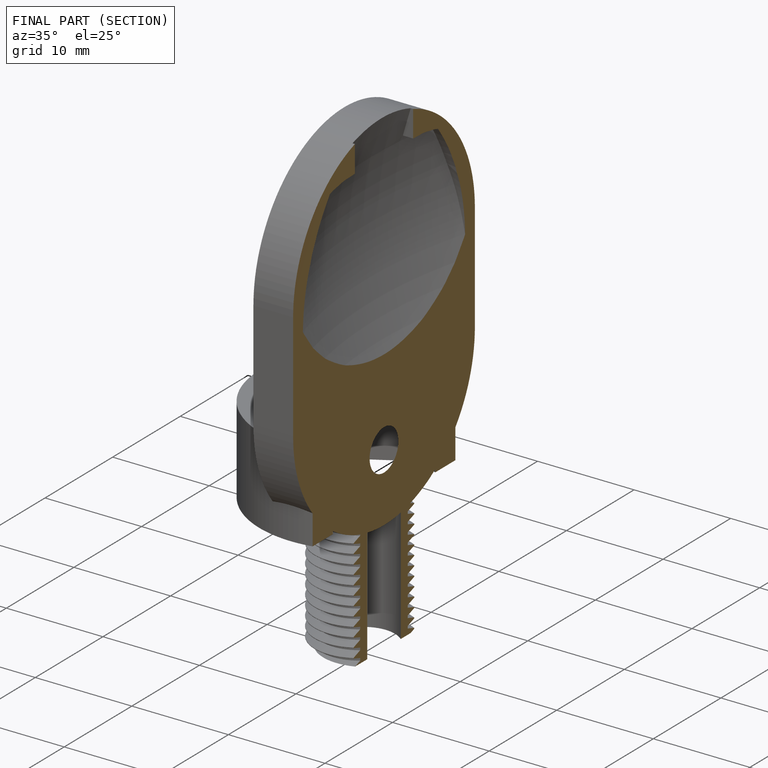
[diagram: finished part — half-section view (interior)]
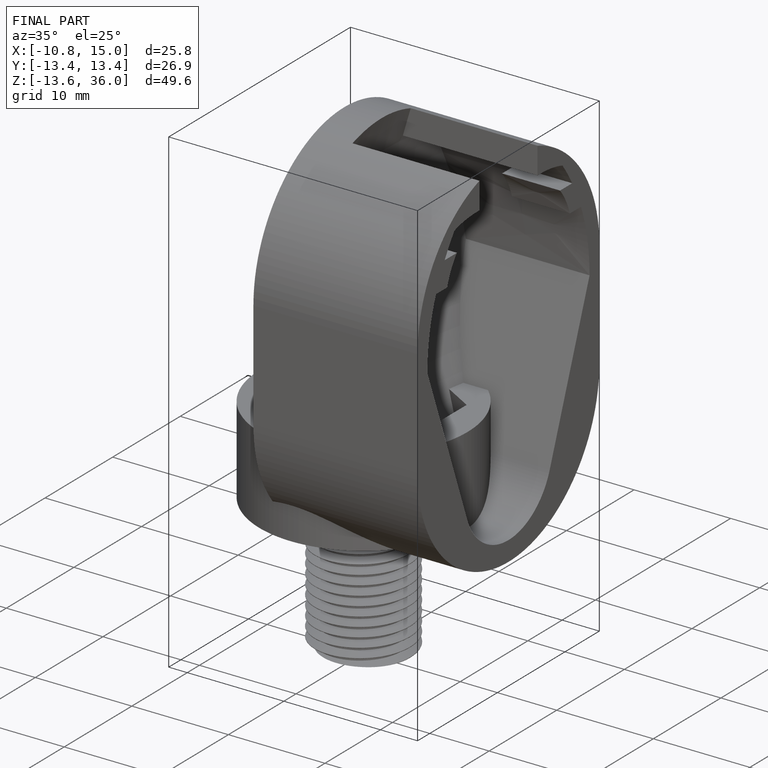
[diagram: finished part — iso view with bounding-box wireframe]
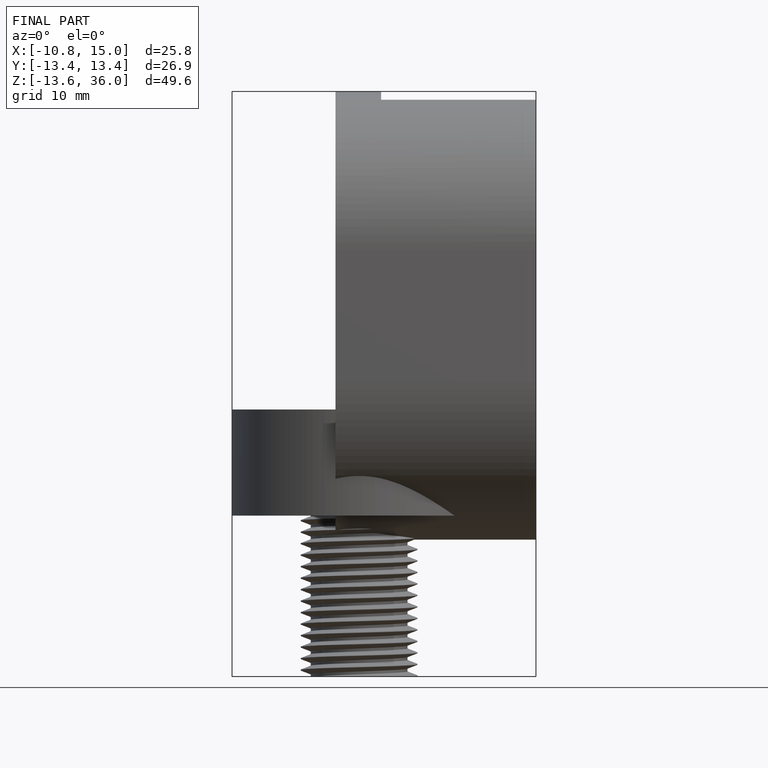
[diagram: finished part — front view with bounding-box wireframe]
